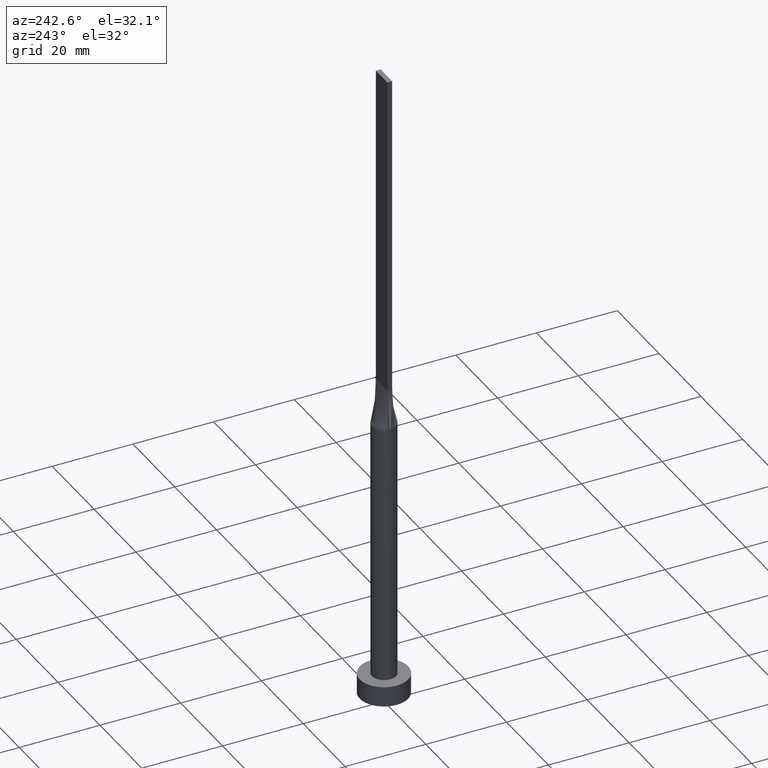
[diagram: clean part render]
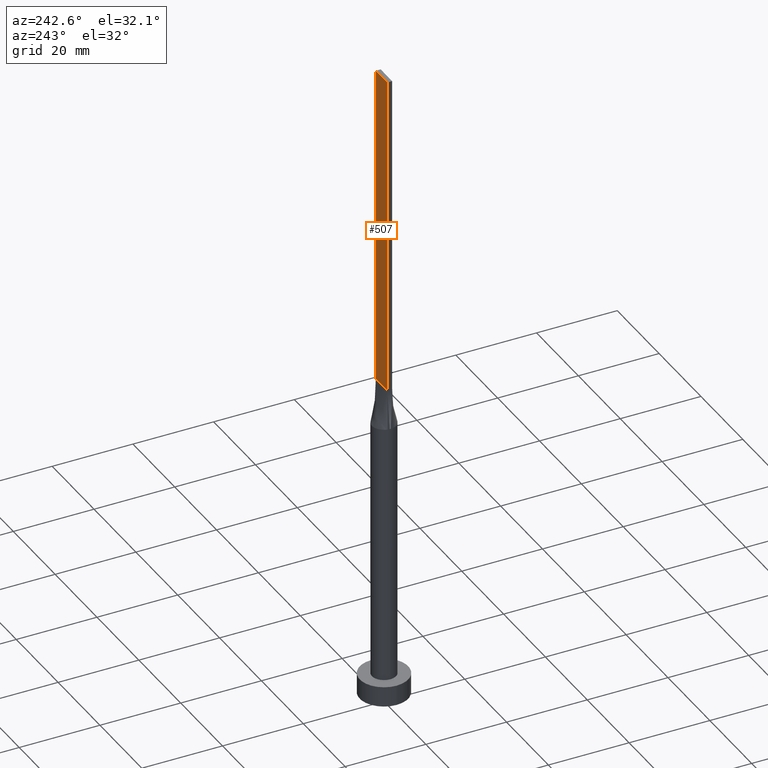
[diagram: same view with one face highlighted and labeled with its STEP entity id]
A machine part, auxiliary view. The second image highlights one B-rep face of the part: STEP entity #507.
In plain terms, the highlighted planar face has unit normal (0, -1, 0).
Its self-contained STEP definition (entity closure, byte-faithful):
#52 = EDGE_LOOP ( 'NONE', ( #567, #103, #243, #482 ) ) ;
#58 = CARTESIAN_POINT ( 'NONE',  ( -2.750000000000000000, 0.6000000000000001998, 80.00000000000000000 ) ) ;
#103 = ORIENTED_EDGE ( 'NONE', *, *, #427, .F. ) ;
#109 = VERTEX_POINT ( 'NONE', #274 ) ;
#143 = DIRECTION ( 'NONE',  ( 0.000000000000000000, -0.000000000000000000, -1.000000000000000000 ) ) ;
#151 = LINE ( 'NONE', #154, #263 ) ;
#154 = CARTESIAN_POINT ( 'NONE',  ( 2.750000000000000000, 0.6000000000000001998, 160.0000000000000000 ) ) ;
#179 = FACE_OUTER_BOUND ( 'NONE', #52, .T. ) ;
#192 = CARTESIAN_POINT ( 'NONE',  ( 2.750000000000000000, 0.6000000000000001998, 80.00000000000000000 ) ) ;
#197 = AXIS2_PLACEMENT_3D ( 'NONE', #550, #514, #143 ) ;
#201 = VERTEX_POINT ( 'NONE', #58 ) ;
#209 = VERTEX_POINT ( 'NONE', #192 ) ;
#214 = EDGE_CURVE ( 'NONE', #109, #209, #283, .T. ) ;
#227 = LINE ( 'NONE', #235, #445 ) ;
#235 = CARTESIAN_POINT ( 'NONE',  ( -2.750000000000000000, 0.6000000000000001998, 160.0000000000000000 ) ) ;
#239 = DIRECTION ( 'NONE',  ( -1.000000000000000000, 0.000000000000000000, 0.000000000000000000 ) ) ;
#243 = ORIENTED_EDGE ( 'NONE', *, *, #560, .F. ) ;
#245 = CARTESIAN_POINT ( 'NONE',  ( -2.750000000000000000, 0.6000000000000001998, 160.0000000000000000 ) ) ;
#263 = VECTOR ( 'NONE', #239, 1000.000000000000000 ) ;
#274 = CARTESIAN_POINT ( 'NONE',  ( 2.750000000000000000, 0.6000000000000001998, 160.0000000000000000 ) ) ;
#275 = LINE ( 'NONE', #358, #468 ) ;
#283 = LINE ( 'NONE', #367, #292 ) ;
#286 = PLANE ( 'NONE',  #197 ) ;
#292 = VECTOR ( 'NONE', #548, 1000.000000000000000 ) ;
#351 = DIRECTION ( 'NONE',  ( -0.000000000000000000, -0.000000000000000000, -1.000000000000000000 ) ) ;
#356 = DIRECTION ( 'NONE',  ( -1.000000000000000000, -0.000000000000000000, -0.000000000000000000 ) ) ;
#358 = CARTESIAN_POINT ( 'NONE',  ( -2.750000000000000000, 0.6000000000000001998, 80.00000000000000000 ) ) ;
#367 = CARTESIAN_POINT ( 'NONE',  ( 2.750000000000000000, 0.6000000000000001998, 160.0000000000000000 ) ) ;
#398 = EDGE_CURVE ( 'NONE', #209, #201, #275, .T. ) ;
#427 = EDGE_CURVE ( 'NONE', #549, #201, #227, .T. ) ;
#445 = VECTOR ( 'NONE', #351, 1000.000000000000000 ) ;
#468 = VECTOR ( 'NONE', #356, 1000.000000000000000 ) ;
#482 = ORIENTED_EDGE ( 'NONE', *, *, #214, .T. ) ;
#507 = ADVANCED_FACE ( 'NONE', ( #179 ), #286, .F. ) ;
#514 = DIRECTION ( 'NONE',  ( 0.000000000000000000, -1.000000000000000000, 0.000000000000000000 ) ) ;
#548 = DIRECTION ( 'NONE',  ( -0.000000000000000000, -0.000000000000000000, -1.000000000000000000 ) ) ;
#549 = VERTEX_POINT ( 'NONE', #245 ) ;
#550 = CARTESIAN_POINT ( 'NONE',  ( 2.750000000000000000, 0.6000000000000001998, 160.0000000000000000 ) ) ;
#560 = EDGE_CURVE ( 'NONE', #109, #549, #151, .T. ) ;
#567 = ORIENTED_EDGE ( 'NONE', *, *, #398, .T. ) ;